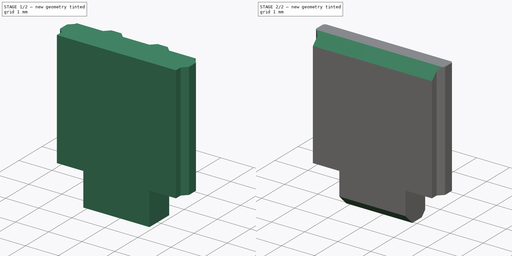
[diagram: build sequence overview — one tinted view per stage of 2, left to right]
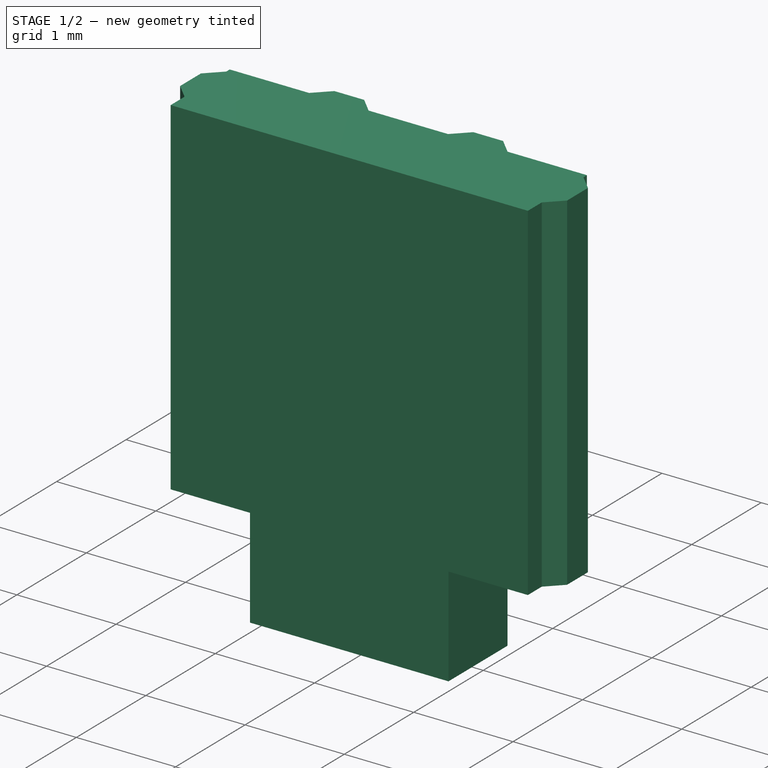
[diagram: stage 1 of 2 — iso view after this stage's code; geometry added in this stage tinted green]
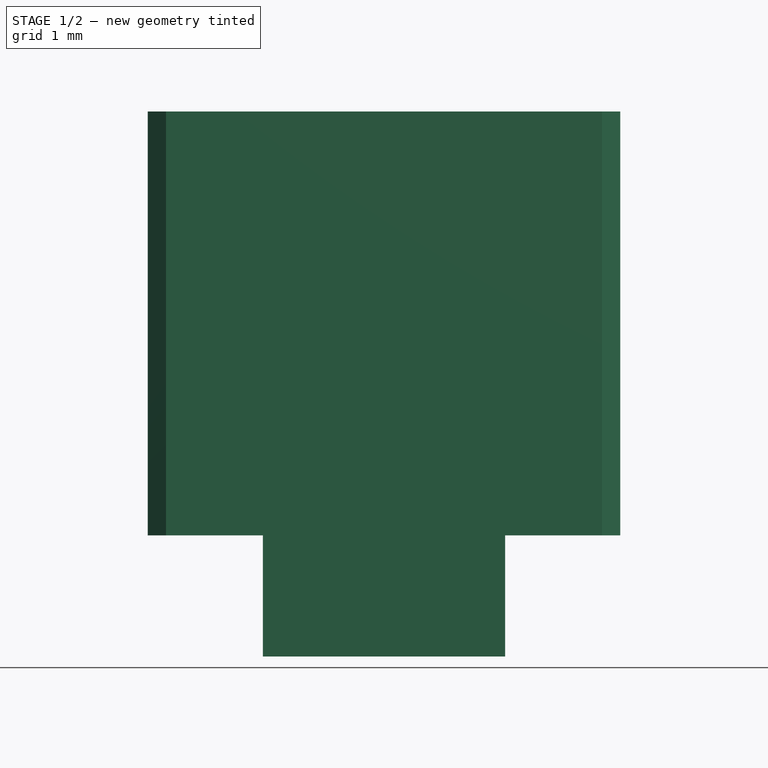
[diagram: stage 1 of 2 — front view after this stage's code; geometry added in this stage tinted green]
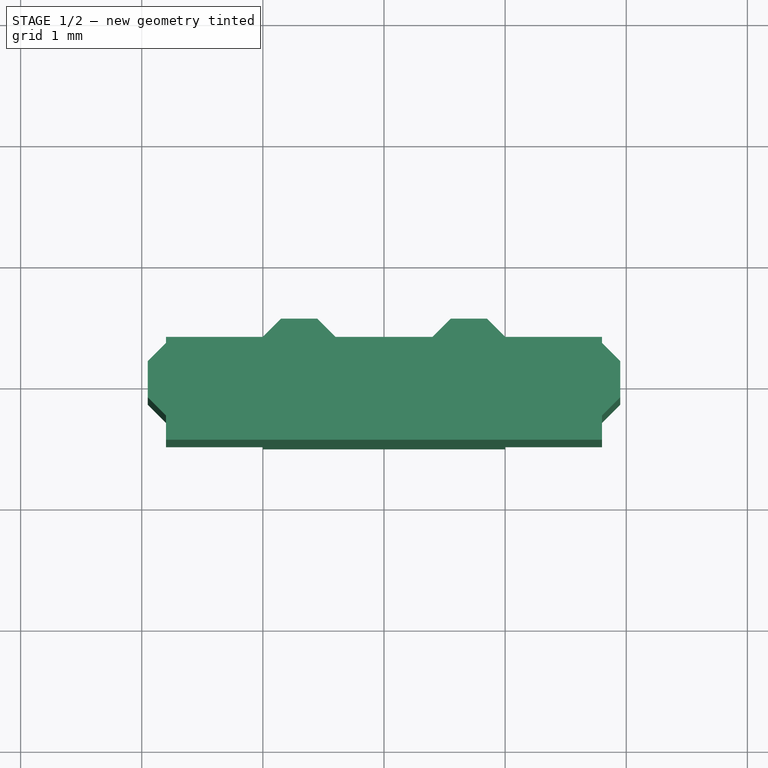
[diagram: stage 1 of 2 — top view after this stage's code; geometry added in this stage tinted green]
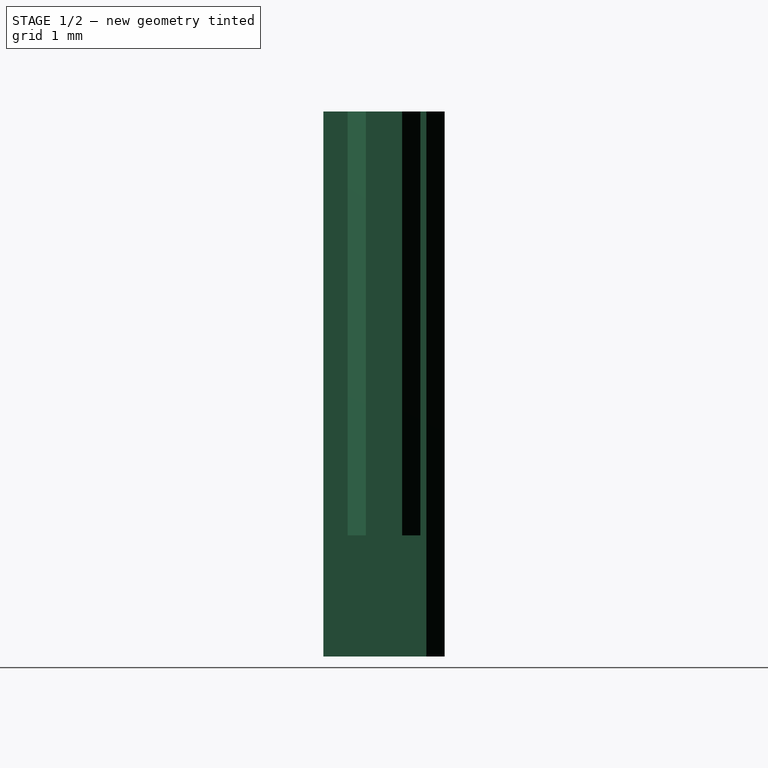
[diagram: stage 1 of 2 — right view after this stage's code; geometry added in this stage tinted green]
FCSTD DOCUMENT  (FreeCAD 1.0R39319 (Git))
Label: INSERT-FADER
License: All rights reserved
LicenseURL: http://en.wikipedia.org/wiki/All_rights_reserved
objects: Sketcher::SketchObject×3, PartDesign::Pocket×2, PartDesign::Pad×1, PartDesign::Body×1
note: 16 computed .brp shape members not serialized (recipe doc carries the construction recipe); baked Part::Feature solids carry a one-line shape summary decoded from their .brp

FEATURE [Sketcher::SketchObject] Sketch008
  ArcFitTolerance = 0
  AttachmentSupport = -> [XY_Plane002]
  FullyConstrained = true
  MakeInternals = false
  MapMode = 5
  sketch-geometry (35):
    g0: LineSegment [constr] StartX=-1.95 StartY=0.5 StartZ=0 EndX=1.95 EndY=0.5 EndZ=0
    g1: LineSegment [constr] StartX=1.95 StartY=0.5 StartZ=0 EndX=1.95 EndY=-0.5 EndZ=0
    g2: LineSegment [constr] StartX=1.95 StartY=-0.5 StartZ=0 EndX=-1.95 EndY=-0.5 EndZ=0
    g3: LineSegment [constr] StartX=-1.95 StartY=-0.5 StartZ=0 EndX=-1.95 EndY=0.5 EndZ=0
    g4: LineSegment [constr] StartX=-1.95 StartY=0.5 StartZ=0 EndX=0 EndY=0 EndZ=0
    g5: LineSegment [constr] StartX=0 StartY=0 StartZ=0 EndX=1.95 EndY=0.5 EndZ=0
    g6: LineSegment [constr] StartX=0 StartY=0 StartZ=0 EndX=-1.95 EndY=-0.5 EndZ=0
    g7: LineSegment StartX=-1.8 StartY=-0.5 StartZ=0 EndX=-1.8 EndY=-0.3 EndZ=0
    g8: LineSegment StartX=-1.8 StartY=-0.3 StartZ=0 EndX=-1.95 EndY=-0.15 EndZ=0
    g9: LineSegment StartX=-1.95 StartY=-0.15 StartZ=0 EndX=-1.95 EndY=0.15 EndZ=0
    g10: LineSegment StartX=-1.95 StartY=0.15 StartZ=0 EndX=-1.8 EndY=0.3 EndZ=0
    g11: LineSegment [constr] StartX=-1.8 StartY=-0.3 StartZ=0 EndX=0 EndY=0 EndZ=0
    g12: LineSegment [constr] StartX=0 StartY=0 StartZ=0 EndX=-1.8 EndY=0.3 EndZ=0
    g13: LineSegment StartX=-1.8 StartY=0.3 StartZ=0 EndX=-1.8 EndY=0.35 EndZ=0
    g14: LineSegment StartX=-1.8 StartY=0.35 StartZ=0 EndX=-1 EndY=0.35 EndZ=0
    g15: LineSegment StartX=-1 StartY=0.35 StartZ=0 EndX=-0.85 EndY=0.5 EndZ=0
    g16: LineSegment StartX=-0.85 StartY=0.5 StartZ=0 EndX=-0.55 EndY=0.5 EndZ=0
    g17: LineSegment StartX=-0.55 StartY=0.5 StartZ=0 EndX=-0.4 EndY=0.35 EndZ=0
    g18: LineSegment StartX=-0.4 StartY=0.35 StartZ=0 EndX=0.4 EndY=0.35 EndZ=0
    g19: LineSegment StartX=0.4 StartY=0.35 StartZ=0 EndX=0.55 EndY=0.5 EndZ=0
    g20: LineSegment StartX=0.55 StartY=0.5 StartZ=0 EndX=0.85 EndY=0.5 EndZ=0
    g21: LineSegment StartX=0.85 StartY=0.5 StartZ=0 EndX=1 EndY=0.35 EndZ=0
    g22: LineSegment StartX=1 StartY=0.35 StartZ=0 EndX=1.8 EndY=0.35 EndZ=0
    g23: LineSegment StartX=1.8 StartY=0.35 StartZ=0 EndX=1.8 EndY=0.3 EndZ=0
    g24: LineSegment StartX=1.8 StartY=0.3 StartZ=0 EndX=1.95 EndY=0.15 EndZ=0
    g25: LineSegment StartX=1.95 StartY=0.15 StartZ=0 EndX=1.95 EndY=-0.15 EndZ=0
    g26: LineSegment StartX=1.95 StartY=-0.15 StartZ=0 EndX=1.8 EndY=-0.3 EndZ=0
    g27: LineSegment [constr] StartX=1.8 StartY=-0.3 StartZ=0 EndX=1.8 EndY=0.3 EndZ=0
    g28: LineSegment StartX=1.8 StartY=-0.3 StartZ=0 EndX=1.8 EndY=-0.5 EndZ=0
    g29: LineSegment StartX=1.8 StartY=-0.5 StartZ=0 EndX=-1.8 EndY=-0.5 EndZ=0
    g30: LineSegment [constr] StartX=-1.8 StartY=-0.3 StartZ=0 EndX=-1.8 EndY=0.3 EndZ=0
    g31: LineSegment [constr] StartX=-1 StartY=0.35 StartZ=0 EndX=-0.4 EndY=0.35 EndZ=0
    g32: LineSegment [constr] StartX=0.4 StartY=0.35 StartZ=0 EndX=1 EndY=0.35 EndZ=0
    g33: LineSegment [constr] StartX=1.8 StartY=-0.3 StartZ=0 EndX=0 EndY=0 EndZ=0
    g34: LineSegment [constr] StartX=0 StartY=0 StartZ=0 EndX=1.8 EndY=0.3 EndZ=0
  constraints (94):
    c: Coincident(g0,g1)
    c: Coincident(g1,g2)
    c: Coincident(g2,g3)
    c: Coincident(g3,g0)
    c: Horizontal(g0)
    c: Horizontal(g2)
    c: Vertical(g1)
    c: Coincident(g4,g0)
    c: Coincident(g4,g-1)
    c: Coincident(g5,g-1)
    c: Coincident(g5,g0)
    c: Coincident(g6,g-1)
    c: Coincident(g6,g2)
    c: Equal(g6,g4)
    c: Equal(g4,g5)
    c: DistanceX(g0,g0) = 3.9
    c: DistanceY(g1,g1) = 1
    c: PointOnObject(g7,g2)
    c: PointOnObject(g8,g3)
    c: Coincident(g9,g8)
    c: Coincident(g10,g9)
    c: PointOnObject(g9,g3)
    c: Coincident(g11,g4)
    c: Coincident(g11,g12)
    c: Equal(g11,g12)
    c: Coincident(g10,g13)
    c: Vertical(g13)
    c: Coincident(g13,g14)
    c: Horizontal(g14)
    c: Coincident(g14,g15)
    c: PointOnObject(g15,g0)
    c: Coincident(g15,g16)
    c: PointOnObject(g16,g0)
    c: Coincident(g16,g17)
    c: Coincident(g17,g18)
    c: Horizontal(g18)
    c: Coincident(g18,g19)
    c: PointOnObject(g19,g0)
    c: Coincident(g19,g20)
    c: PointOnObject(g20,g0)
    c: Coincident(g20,g21)
    c: Coincident(g21,g22)
    c: Horizontal(g22)
    c: Coincident(g22,g23)
    c: Vertical(g23)
    c: Coincident(g23,g24)
    c: PointOnObject(g24,g1)
    c: Coincident(g24,g25)
    c: Coincident(g25,g26)
    c: Coincident(g26,g27)
    c: Vertical(g27)
    c: PointOnObject(g28,g2)
    c: Coincident(g28,g29)
    c: Coincident(g29,g7)
    c: Vertical(g7)
    c: Vertical(g3)
    c: Coincident(g30,g10)
    c: Vertical(g30)
    c: Equal(g8,g10)
    c: Coincident(g14,g31)
    c: Coincident(g31,g17)
    c: Coincident(g18,g32)
    c: Coincident(g32,g21)
    c: Vertical(g28)
    c: PointOnObject(g25,g1)
    c: Horizontal(g32)
    c: Horizontal(g31)
    c: DistanceX(g2,g7) = 0.15
    c: DistanceY(g13,g0) = 0.15
    c: Equal(g15,g17)
    c: Equal(g15,g10)
    c: Equal(g26,g24)
    c: Coincident(g26,g33)
    c: Coincident(g33,g34)
    c: Coincident(g34,g27)
    c: Coincident(g33,g4)
    c: Equal(g33,g34)
    c: Equal(g34,g11)
    c: Equal(g16,g20)
    c: Equal(g19,g15)
    c: Equal(g15,g21)
    c: Equal(g22,g18)
    c: Equal(g18,g14)
    c: Coincident(g12,g10)
    c: Coincident(g30,g11)
    c: Coincident(g30,g8)
    c: Coincident(g7,g8)
    c: DistanceY(g9,g9) = 0.3
    c: Angle(g30,g8) = 0.785398
    c: Equal(g16,g9)
    c: Coincident(g28,g26)
    c: Coincident(g27,g23)
    c: Equal(g30,g27)
    c: Equal(g9,g25)
FEATURE [PartDesign::Pad] Pad005  label="Riser002"
  AllowMultiFace = false
  Direction = (0,0,1)
  Length = 4.5
  Length2 = 100
  Profile = -> Sketch008
  ReferenceAxis = -> Sketch008 [N_Axis]
  Refine = true
  Suppressed = false
  Type = 0
FEATURE [Sketcher::SketchObject] Sketch
  ArcFitTolerance = 0
  AttachmentSupport = -> [XZ_Plane002]
  FullyConstrained = true
  MakeInternals = false
  MapMode = 5
  Placement = pos=(0,0,0) rot=(1,0,0;1.5708rad)
  sketch-geometry (11):
    g0: LineSegment StartX=-1 StartY=0 StartZ=0 EndX=-2 EndY=0 EndZ=0
    g1: LineSegment StartX=-2 StartY=0 StartZ=0 EndX=-2 EndY=1 EndZ=0
    g2: LineSegment StartX=-2 StartY=1 StartZ=0 EndX=-1 EndY=1 EndZ=0
    g3: LineSegment StartX=-1 StartY=1 StartZ=0 EndX=-1 EndY=0 EndZ=0
    g4: LineSegment StartX=1 StartY=0 StartZ=0 EndX=2 EndY=0 EndZ=0
    g5: LineSegment StartX=2 StartY=0 StartZ=0 EndX=2 EndY=1 EndZ=0
    g6: LineSegment StartX=2 StartY=1 StartZ=0 EndX=1 EndY=1 EndZ=0
    g7: LineSegment StartX=1 StartY=1 StartZ=0 EndX=1 EndY=0 EndZ=0
    g8: LineSegment [constr] StartX=-1 StartY=1 StartZ=0 EndX=0 EndY=0 EndZ=0
    g9: LineSegment [constr] StartX=0 StartY=0 StartZ=0 EndX=1 EndY=1 EndZ=0
    g10: LineSegment [constr] StartX=1 StartY=1 StartZ=0 EndX=-1 EndY=1 EndZ=0
  constraints (30):
    c: Coincident(g0,g1)
    c: Coincident(g1,g2)
    c: Coincident(g2,g3)
    c: Coincident(g3,g0)
    c: Horizontal(g0)
    c: Horizontal(g2)
    c: Vertical(g1)
    c: Vertical(g3)
    c: PointOnObject(g0,g-1)
    c: Coincident(g4,g5)
    c: Coincident(g5,g6)
    c: Coincident(g6,g7)
    c: Coincident(g7,g4)
    c: Horizontal(g4)
    c: Horizontal(g6)
    c: Vertical(g5)
    c: Vertical(g7)
    c: PointOnObject(g4,g-1)
    c: Coincident(g2,g8)
    c: Coincident(g8,g-1)
    c: Coincident(g8,g9)
    c: Coincident(g9,g6)
    c: Coincident(g9,g10)
    c: Coincident(g10,g8)
    c: Horizontal(g10)
    c: Equal(g8,g9)
    c: Equal(g6,g2)
    c: Equal(g2,g3)
    c: DistanceY(g1,g1) = 1
    c: DistanceX(g0,g4) = 4
FEATURE [PartDesign::Pocket] Pocket
  BaseFeature = -> Pad005
  Direction = (0,1,-2e-16)
  Length = 5
  Length2 = 5
  Midplane = true
  Profile = -> Sketch
  ReferenceAxis = -> Sketch [N_Axis]
  Suppressed = false
  Type = 1
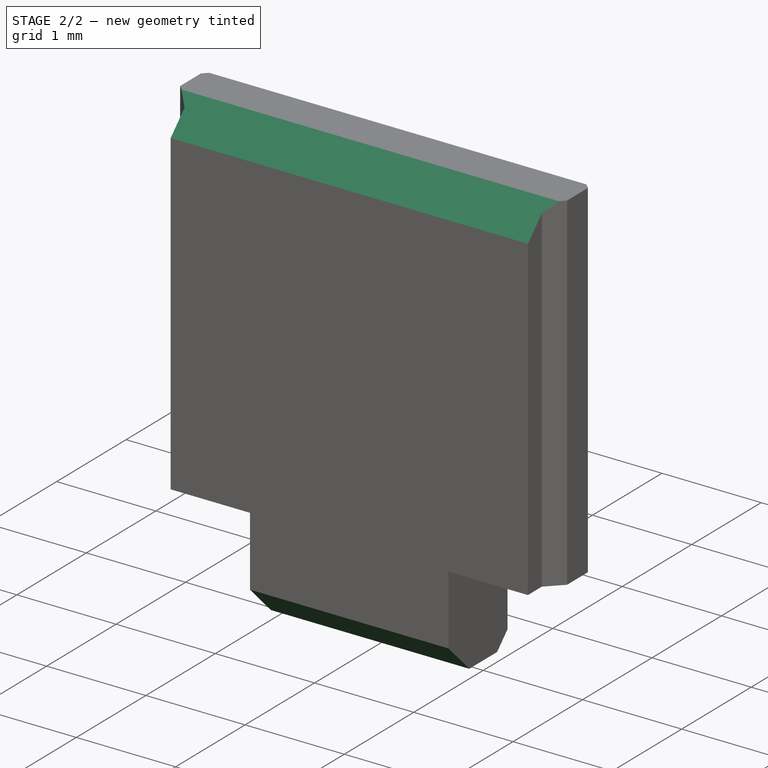
[diagram: stage 2 of 2 — iso view after this stage's code; geometry added in this stage tinted green]
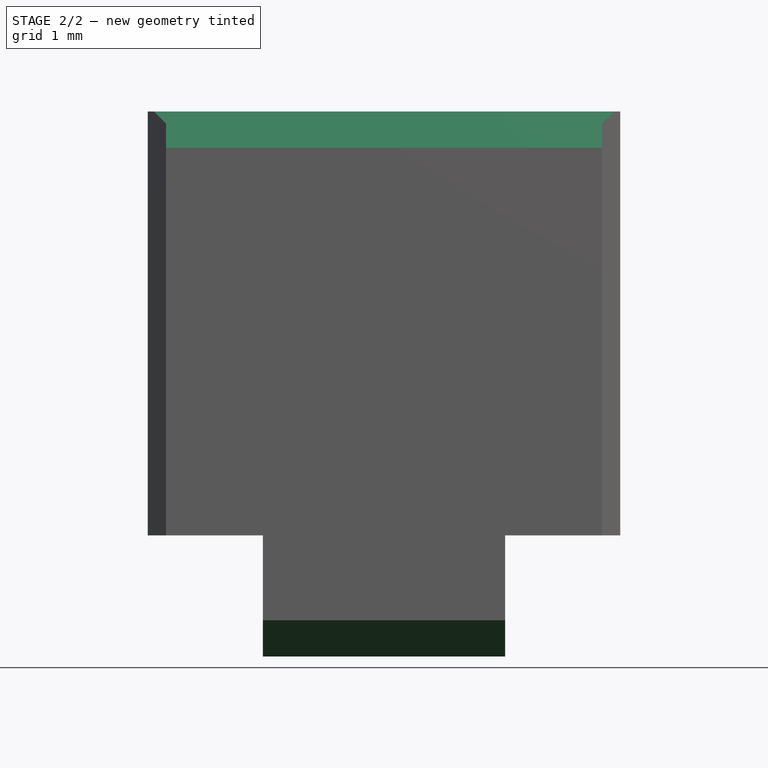
[diagram: stage 2 of 2 — front view after this stage's code; geometry added in this stage tinted green]
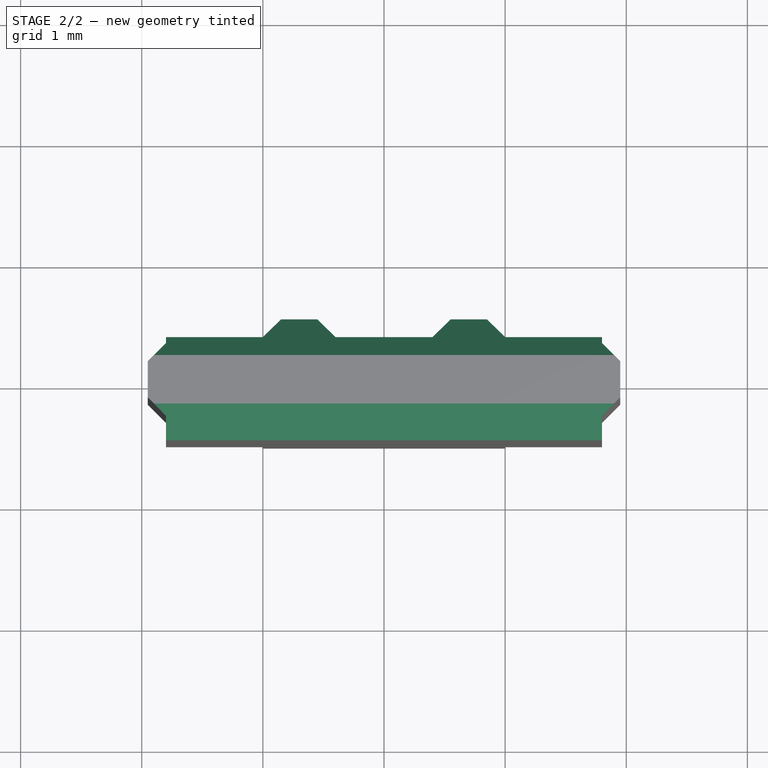
[diagram: stage 2 of 2 — top view after this stage's code; geometry added in this stage tinted green]
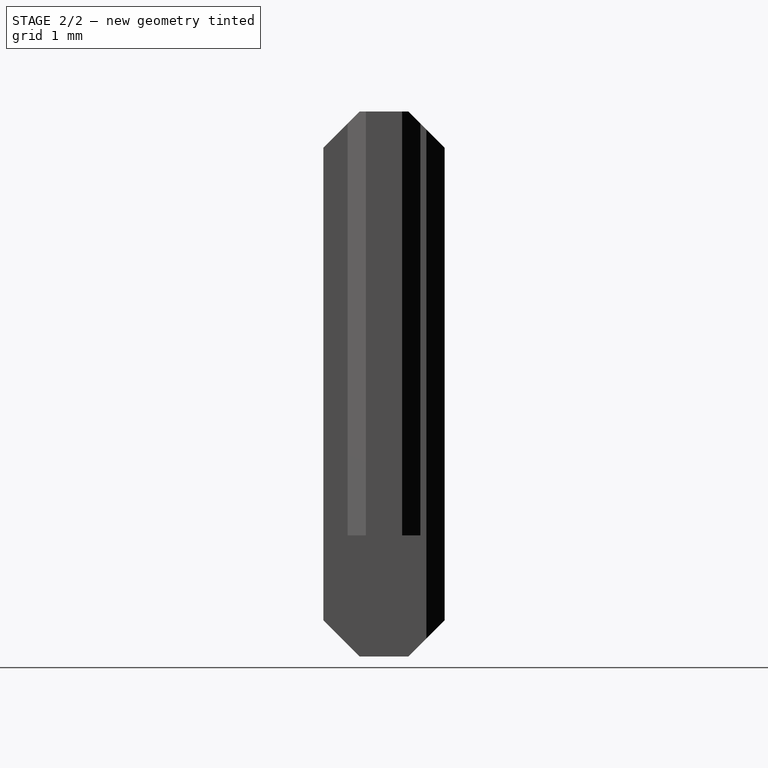
[diagram: stage 2 of 2 — right view after this stage's code; geometry added in this stage tinted green]
FEATURE [Sketcher::SketchObject] Sketch009
  ArcFitTolerance = 0
  AttachmentSupport = -> [YZ_Plane002]
  FullyConstrained = true
  MakeInternals = false
  MapMode = 5
  Placement = pos=(0,0,0) rot=(0.57735,0.57735,0.57735;2.0944rad)
  expr: Constraints[46] = Pad005.Length
  sketch-geometry (19):
    g0: LineSegment StartX=-0.5 StartY=4.2 StartZ=0 EndX=-0.5 EndY=0.3 EndZ=0
    g1: LineSegment StartX=-0.5 StartY=0.3 StartZ=0 EndX=-0.2 EndY=0 EndZ=0
    g2: LineSegment StartX=-0.2 StartY=0 StartZ=0 EndX=0.2 EndY=0 EndZ=0
    g3: LineSegment StartX=0.2 StartY=0 StartZ=0 EndX=0.5 EndY=0.3 EndZ=0
    g4: LineSegment StartX=0.5 StartY=0.3 StartZ=0 EndX=0.5 EndY=4.2 EndZ=0
    g5: LineSegment StartX=0.5 StartY=4.2 StartZ=0 EndX=0.2 EndY=4.5 EndZ=0
    g6: LineSegment StartX=0.2 StartY=4.5 StartZ=0 EndX=-0.2 EndY=4.5 EndZ=0
    g7: LineSegment StartX=-0.2 StartY=4.5 StartZ=0 EndX=-0.5 EndY=4.2 EndZ=0
    g8: LineSegment [constr] StartX=-0.5 StartY=4.2 StartZ=0 EndX=-0.5 EndY=4.5 EndZ=0
    g9: LineSegment [constr] StartX=-0.5 StartY=4.5 StartZ=0 EndX=-0.2 EndY=4.5 EndZ=0
    g10: LineSegment [constr] StartX=0.2 StartY=4.5 StartZ=0 EndX=0.5 EndY=4.5 EndZ=0
    g11: LineSegment [constr] StartX=0.5 StartY=4.5 StartZ=0 EndX=0.5 EndY=4.2 EndZ=0
    g12: LineSegment [constr] StartX=0.5 StartY=0.3 StartZ=0 EndX=0.5 EndY=0 EndZ=0
    g13: LineSegment [constr] StartX=0.5 StartY=0 StartZ=0 EndX=0.2 EndY=0 EndZ=0
    g14: LineSegment [constr] StartX=-0.2 StartY=0 StartZ=0 EndX=-0.5 EndY=0 EndZ=0
    g15: LineSegment [constr] StartX=-0.5 StartY=0 StartZ=0 EndX=-0.5 EndY=0.3 EndZ=0
    g16: LineSegment [constr] StartX=-0.2 StartY=4.5 StartZ=0 EndX=0 EndY=0 EndZ=0
    g17: LineSegment [constr] StartX=0 StartY=0 StartZ=0 EndX=0.2 EndY=4.5 EndZ=0
    g18: Circle CenterX=0 CenterY=0 CenterZ=0 NormalX=0 NormalY=0 NormalZ=1 AngleXU=0 Radius=6
  constraints (50):
    c: Vertical(g0)
    c: Coincident(g0,g1)
    c: PointOnObject(g1,g-1)
    c: Coincident(g1,g2)
    c: Coincident(g2,g3)
    c: Coincident(g3,g4)
    c: Vertical(g4)
    c: Coincident(g4,g5)
    c: Coincident(g5,g6)
    c: Horizontal(g6)
    c: Coincident(g6,g7)
    c: Coincident(g7,g0)
    c: Coincident(g0,g8)
    c: Vertical(g8)
    c: Coincident(g8,g9)
    c: Horizontal(g9)
    c: Coincident(g6,g9)
    c: Coincident(g5,g10)
    c: Horizontal(g10)
    c: Coincident(g10,g11)
    c: Coincident(g11,g4)
    c: Vertical(g11)
    c: Coincident(g3,g12)
    c: Vertical(g12)
    c: Coincident(g12,g13)
    c: Coincident(g13,g2)
    c: Horizontal(g13)
    c: Coincident(g1,g14)
    c: Horizontal(g14)
    c: Coincident(g14,g15)
    c: Coincident(g15,g0)
    c: Vertical(g15)
    c: Equal(g15,g14)
    c: Equal(g14,g8)
    c: Equal(g8,g9)
    c: Equal(g9,g10)
    c: Equal(g10,g11)
    c: Equal(g11,g12)
    c: Equal(g12,g13)
    c: PointOnObject(g2,g-1)
    c: DistanceX(g9,g9) = 0.3
    c: Coincident(g6,g16)
    c: Coincident(g16,g17)
    c: Coincident(g17,g5)
    c: Coincident(g16,g-1)
    c: Equal(g16,g17)
    c: DistanceY(g14,g8) = 4.5
    c: DistanceX(g14,g12) = 1
    c: Coincident(g18,g16)
    c: Diameter(g18) = 12
FEATURE [PartDesign::Pocket] Pocket001
  BaseFeature = -> Pocket
  Direction = (-1,0,0)
  Length = 5
  Length2 = 5
  Midplane = true
  Profile = -> Sketch009
  ReferenceAxis = -> Sketch009 [N_Axis]
  Suppressed = false
  Type = 1
FEATURE [PartDesign::Body] Body002  label="INSERT-FADER"
  AllowCompound = false
  Group = -> [Sketch008,Pad005,Sketch,Pocket,Sketch009,Pocket001]
  Origin = -> Origin002
  Tip = -> Pocket001
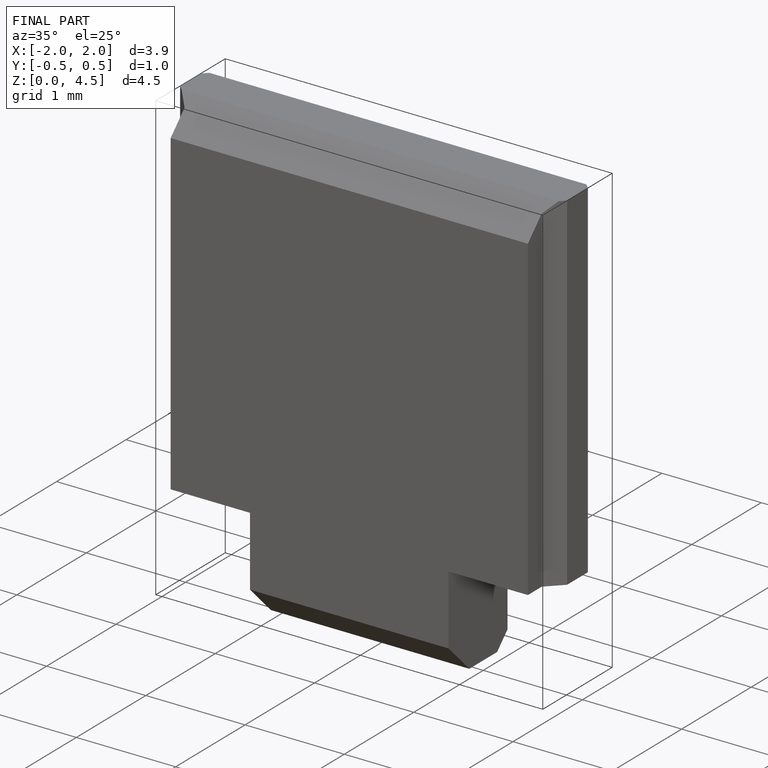
[diagram: finished part — iso view with bounding-box wireframe]
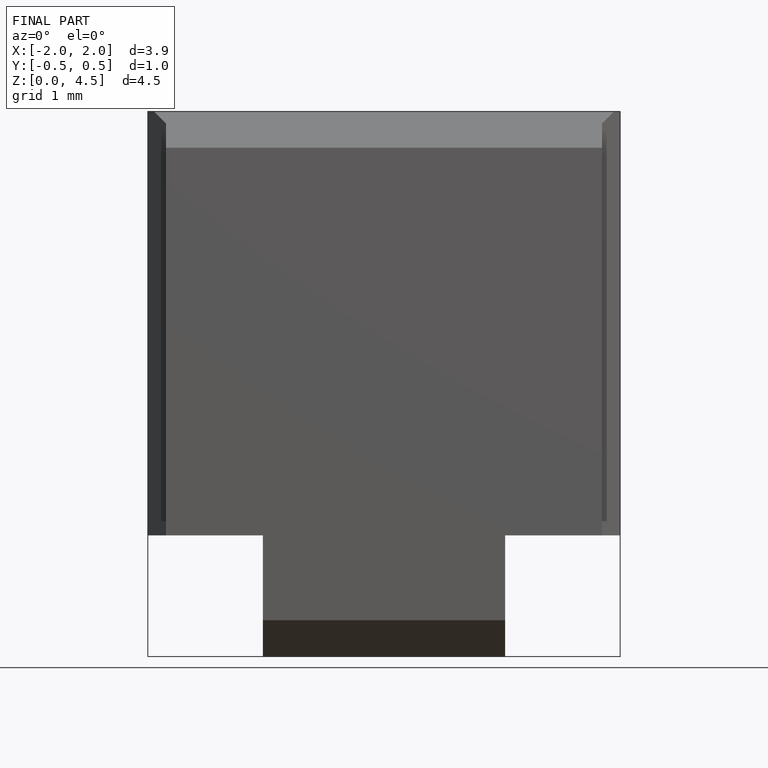
[diagram: finished part — front view with bounding-box wireframe]
